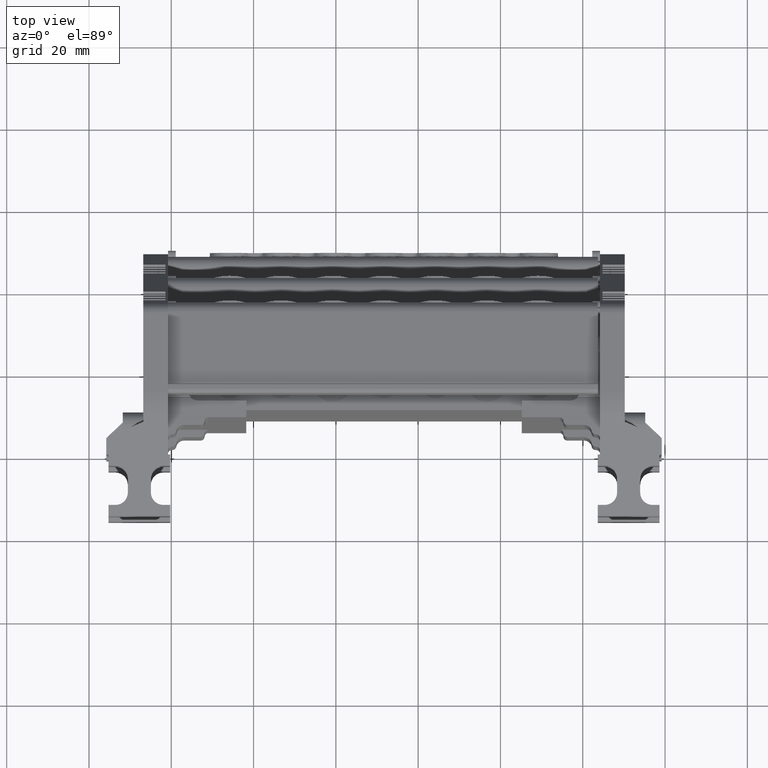
[diagram: clean part render]
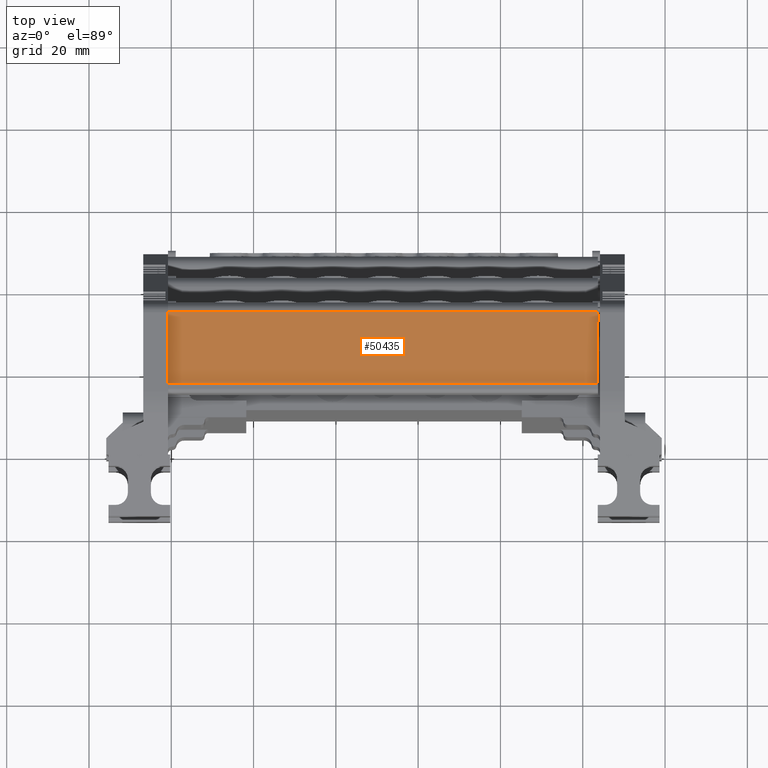
[diagram: same view with one face highlighted and labeled with its STEP entity id]
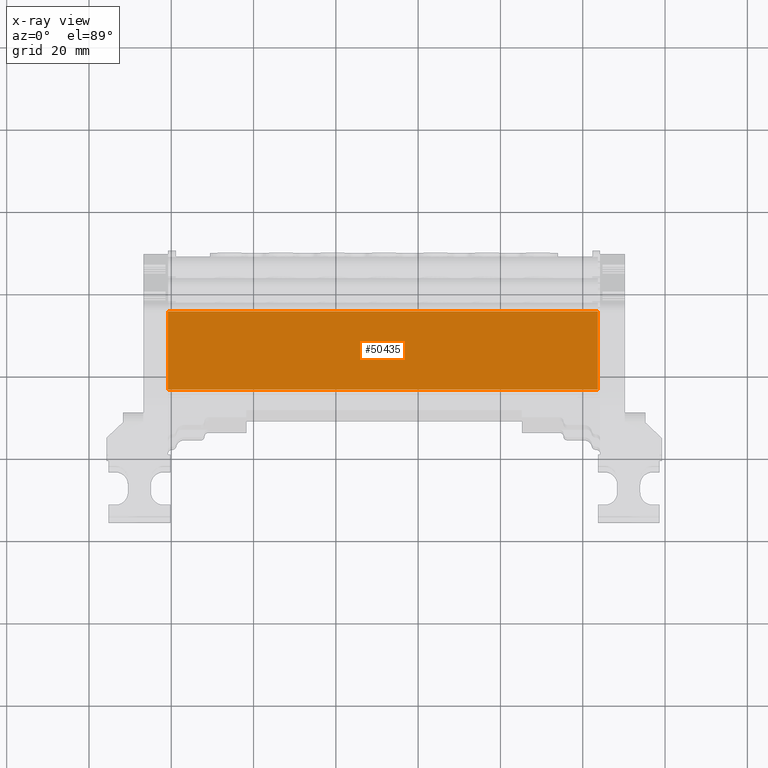
[diagram: x-ray of the same camera — body ghosted, the highlighted face saturated]
A machine part, top view. The second image highlights one B-rep face of the part: STEP entity #50435.
The next image is the same camera in x-ray: the body ghosted, the highlighted face saturated — about 0% of this face is hidden behind the body in this view.
In plain terms, the highlighted planar face has unit normal (-0, 0.2756, 0.9613).
Its self-contained STEP definition (entity closure, byte-faithful):
#1491 = DIRECTION ( 'NONE',  ( -0.0000000000000000000, 0.9612616959382716000, -0.2756373558171642000 ) ) ;
#1610 = CARTESIAN_POINT ( 'NONE',  ( 43.67005696747459400, 266.4027483853859600, 42.29166631926808900 ) ) ;
#1629 = LINE ( 'NONE', #1610, #94036 ) ;
#1714 = CARTESIAN_POINT ( 'NONE',  ( 43.67005696747472100, 255.3211682453422800, 45.46925829134411900 ) ) ;
#1765 = DIRECTION ( 'NONE',  ( 1.000000000000000000, 8.632101394408200400E-016, 3.010371508353890400E-015 ) ) ;
#1790 = LINE ( 'NONE', #1714, #94009 ) ;
#29180 = CARTESIAN_POINT ( 'NONE',  ( -60.79994303252517100, 274.4429804332959300, 39.98616687909797200 ) ) ;
#29190 = LINE ( 'NONE', #29218, #30555 ) ;
#29192 = DIRECTION ( 'NONE',  ( -1.000000000000000000, -8.632101394408200400E-016, -3.010371508353890400E-015 ) ) ;
#29209 = DIRECTION ( 'NONE',  ( -1.081345630580112000E-014, -0.9612616959382714900, 0.2756373558171643100 ) ) ;
#29216 = LINE ( 'NONE', #29180, #30553 ) ;
#29218 = CARTESIAN_POINT ( 'NONE',  ( 43.67005696747472100, 274.4429804332955300, 39.98616687909844100 ) ) ;
#30553 = VECTOR ( 'NONE', #29209, 1000.000000000000200 ) ;
#30555 = VECTOR ( 'NONE', #29192, 1000.000000000000000 ) ;
#32500 = AXIS2_PLACEMENT_3D ( 'NONE', #60140, #60131, #60128 ) ;
#41553 = VERTEX_POINT ( 'NONE', #63309 ) ;
#41677 = VERTEX_POINT ( 'NONE', #63319 ) ;
#41736 = VERTEX_POINT ( 'NONE', #63476 ) ;
#50435 = ADVANCED_FACE ( 'NONE', ( #60112 ), #60117, .T. ) ;
#60112 = FACE_OUTER_BOUND ( 'NONE', #95287, .T. ) ;
#60117 = PLANE ( 'NONE',  #32500 ) ;
#60128 = DIRECTION ( 'NONE',  ( 0.0000000000000000000, -0.9612616959382716000, 0.2756373558171642000 ) ) ;
#60131 = DIRECTION ( 'NONE',  ( -3.131687781874546700E-015, 0.2756373558171642000, 0.9612616959382716000 ) ) ;
#60140 = CARTESIAN_POINT ( 'NONE',  ( 43.67005696747472100, 266.4027483853859600, 42.29166631926808900 ) ) ;
#63309 = CARTESIAN_POINT ( 'NONE',  ( 43.67005696747459400, 255.3211682453418000, 45.46925829134426800 ) ) ;
#63319 = CARTESIAN_POINT ( 'NONE',  ( 43.67005696747468600, 274.4429804332955300, 39.98616687909844100 ) ) ;
#63476 = CARTESIAN_POINT ( 'NONE',  ( -60.79994303252539100, 255.3211682453422200, 45.46925829134379200 ) ) ;
#71987 = EDGE_CURVE ( 'NONE', #41553, #41677, #1629, .T. ) ;
#72002 = EDGE_CURVE ( 'NONE', #41736, #41553, #1790, .T. ) ;
#73089 = EDGE_CURVE ( 'NONE', #90514, #41736, #29216, .T. ) ;
#73090 = EDGE_CURVE ( 'NONE', #41677, #90514, #29190, .T. ) ;
#90514 = VERTEX_POINT ( 'NONE', #99697 ) ;
#91470 = ORIENTED_EDGE ( 'NONE', *, *, #71987, .T. ) ;
#91485 = ORIENTED_EDGE ( 'NONE', *, *, #73089, .T. ) ;
#91503 = ORIENTED_EDGE ( 'NONE', *, *, #72002, .T. ) ;
#91530 = ORIENTED_EDGE ( 'NONE', *, *, #73090, .T. ) ;
#94009 = VECTOR ( 'NONE', #1765, 1000.000000000000000 ) ;
#94036 = VECTOR ( 'NONE', #1491, 1000.000000000000000 ) ;
#95287 = EDGE_LOOP ( 'NONE', ( #91485, #91503, #91470, #91530 ) ) ;
#99697 = CARTESIAN_POINT ( 'NONE',  ( -60.79994303252517100, 274.4429804332959300, 39.98616687909797200 ) ) ;